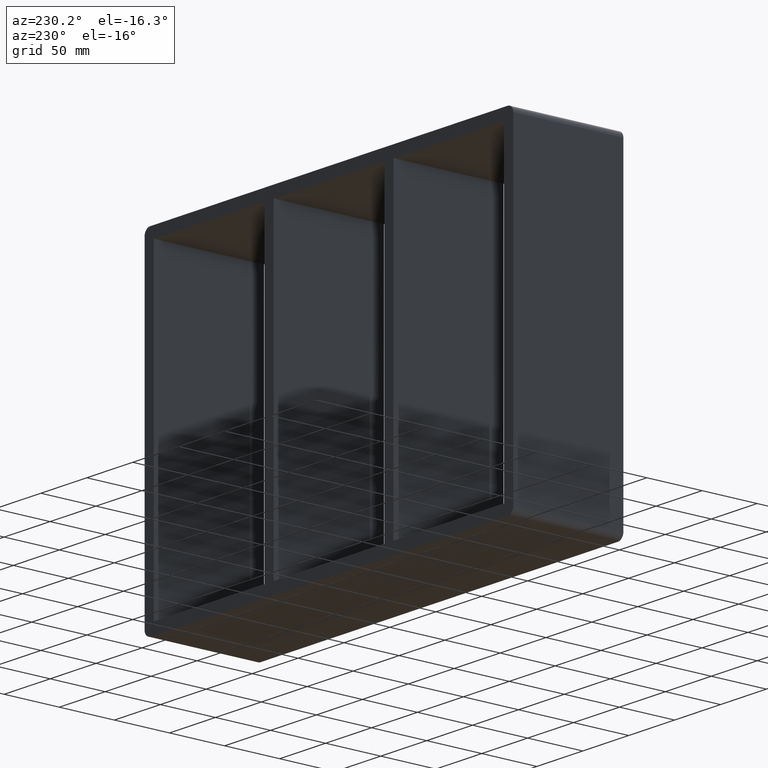
[diagram: clean part render]
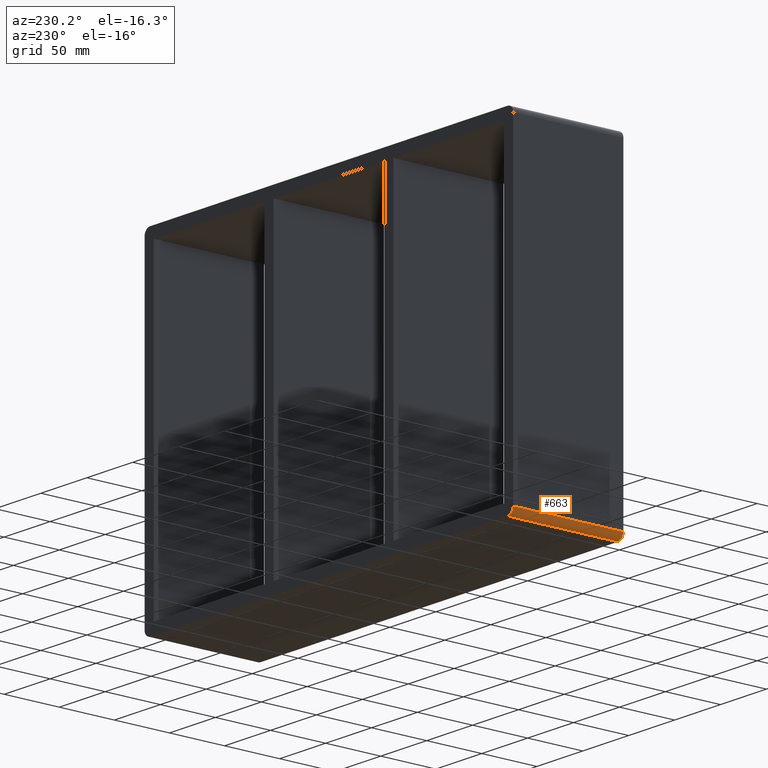
[diagram: same view with one face highlighted and labeled with its STEP entity id]
A machine part, auxiliary view. The second image highlights one B-rep face of the part: STEP entity #663.
In plain terms, the highlighted cylindrical surface (edge-blend (fillet) strip) has radius 6 mm, axis along (0, 1, 0).
Its self-contained STEP definition (entity closure, byte-faithful):
#481=CARTESIAN_POINT('',(-200.75000000000003,-3.0,-143.0));
#482=VERTEX_POINT('',#481);
#489=CARTESIAN_POINT('',(-194.75,-3.0,-149.0));
#490=VERTEX_POINT('',#489);
#491=CARTESIAN_POINT('',(-194.75,-3.0,-143.0));
#492=DIRECTION('',(0.0,-1.0,0.0));
#493=DIRECTION('',(0.0,0.0,-1.0));
#494=AXIS2_PLACEMENT_3D('',#491,#492,#493);
#495=CIRCLE('',#494,6.000000000000001);
#496=EDGE_CURVE('',#482,#490,#495,.T.);
#621=CARTESIAN_POINT('',(-200.75000000000003,97.0,-143.0));
#622=VERTEX_POINT('',#621);
#629=CARTESIAN_POINT('',(-200.75000000000003,-3.0,-143.0));
#630=DIRECTION('',(0.0,1.0,0.0));
#631=VECTOR('',#630,100.0);
#632=LINE('',#629,#631);
#633=EDGE_CURVE('',#482,#622,#632,.T.);
#639=CARTESIAN_POINT('',(-194.75,0.0,-143.0));
#640=DIRECTION('',(0.0,1.0,0.0));
#641=DIRECTION('',(0.0,0.0,-1.0));
#642=AXIS2_PLACEMENT_3D('',#639,#640,#641);
#643=CYLINDRICAL_SURFACE('',#642,6.000000000000001);
#644=ORIENTED_EDGE('',*,*,#633,.T.);
#645=CARTESIAN_POINT('',(-194.75,97.0,-149.0));
#646=VERTEX_POINT('',#645);
#647=CARTESIAN_POINT('',(-194.75,97.0,-143.0));
#648=DIRECTION('',(0.0,1.0,0.0));
#649=DIRECTION('',(0.0,0.0,-1.0));
#650=AXIS2_PLACEMENT_3D('',#647,#648,#649);
#651=CIRCLE('',#650,6.000000000000001);
#652=EDGE_CURVE('',#646,#622,#651,.T.);
#653=ORIENTED_EDGE('',*,*,#652,.F.);
#654=CARTESIAN_POINT('',(-194.75,-3.0,-149.0));
#655=DIRECTION('',(0.0,1.0,0.0));
#656=VECTOR('',#655,100.0);
#657=LINE('',#654,#656);
#658=EDGE_CURVE('',#490,#646,#657,.T.);
#659=ORIENTED_EDGE('',*,*,#658,.F.);
#660=ORIENTED_EDGE('',*,*,#496,.F.);
#661=EDGE_LOOP('',(#644,#653,#659,#660));
#662=FACE_OUTER_BOUND('',#661,.T.);
#663=ADVANCED_FACE('',(#662),#643,.T.);